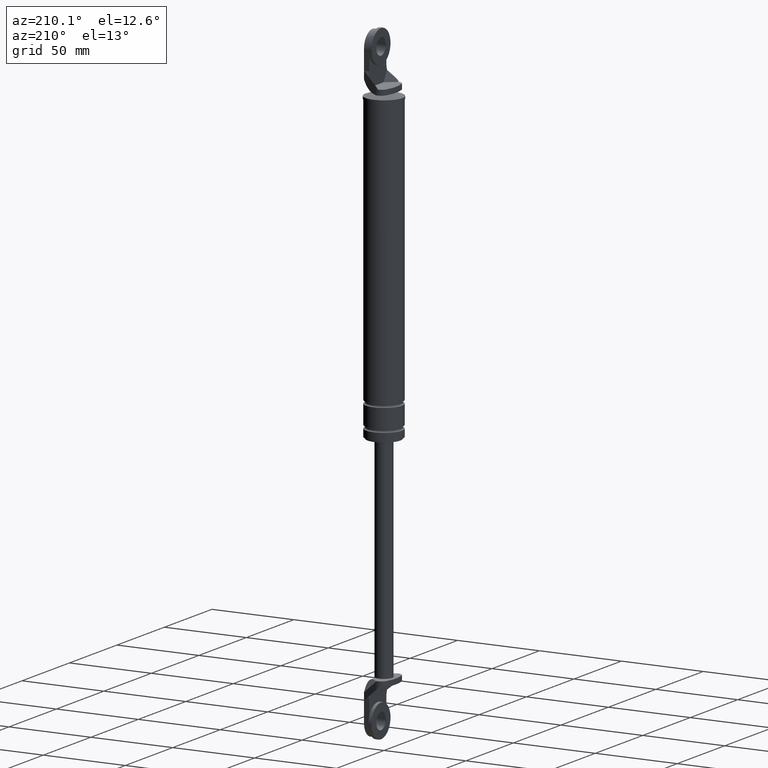
[diagram: clean part render]
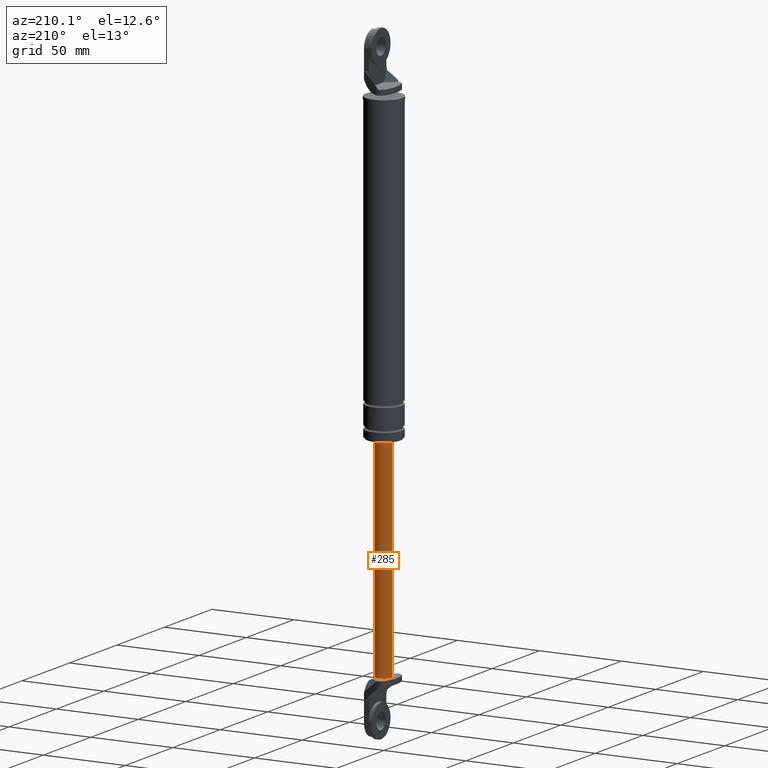
[diagram: same view with one face highlighted and labeled with its STEP entity id]
A machine part, auxiliary view. The second image highlights one B-rep face of the part: STEP entity #285.
In plain terms, the highlighted cylindrical surface (edge-blend (fillet) strip) has radius 5 mm, axis along (0, 0, 1).
Its self-contained STEP definition (entity closure, byte-faithful):
#285=ADVANCED_FACE('',(#1109),#1108,.T.);
#1108=CYLINDRICAL_SURFACE('',#1773,5.00000000000E+000);
#1109=FACE_OUTER_BOUND('',#1774,.T.);
#1770=CARTESIAN_POINT('',(0.00000000000E+000,3.58204186421E-014,0.00000000000E+000));
#1771=DIRECTION('',(-0.00000000000E+000,-0.00000000000E+000,1.00000000000E+000));
#1772=DIRECTION('',(1.00000000000E+000,0.00000000000E+000,0.00000000000E+000));
#1773=AXIS2_PLACEMENT_3D('',#1770,#1771,#1772);
#1774=EDGE_LOOP('',(#2170,#2171,#2172,#2173,#2174));
#2170=ORIENTED_EDGE('',*,*,#2374,.T.);
#2171=ORIENTED_EDGE('',*,*,#2378,.F.);
#2172=ORIENTED_EDGE('',*,*,#2362,.F.);
#2173=ORIENTED_EDGE('',*,*,#2366,.F.);
#2174=ORIENTED_EDGE('',*,*,#2379,.T.);
#2362=EDGE_CURVE('',#3244,#3594,#3595,.T.);
#2366=EDGE_CURVE('',#3613,#3244,#3620,.T.);
#2374=EDGE_CURVE('',#3665,#3664,#3672,.T.);
#2378=EDGE_CURVE('',#3594,#3664,#3696,.T.);
#2379=EDGE_CURVE('',#3613,#3665,#3702,.T.);
#3244=VERTEX_POINT('',#4240);
#3594=VERTEX_POINT('',#4448);
#3595=CIRCLE('',#4452,5.00000000000E+000);
#3613=VERTEX_POINT('',#4460);
#3620=CIRCLE('',#4468,5.00000000000E+000);
#3664=VERTEX_POINT('',#4492);
#3665=VERTEX_POINT('',#4493);
#3672=CIRCLE('',#4501,5.00000000000E+000);
#3696=(BOUNDED_CURVE() B_SPLINE_CURVE(1,(#4510,#4511),.UNSPECIFIED.,.F.,.F.) B_SPLINE_CURVE_WITH_KNOTS((2,2),(6.71140940856E-002,9.32885905909E-001),.UNSPECIFIED.) CURVE() GEOMETRIC_REPRESENTATION_ITEM() RATIONAL_B_SPLINE_CURVE((1.00000000000E+000,1.00000000000E+000)) REPRESENTATION_ITEM('') );
#3702=(BOUNDED_CURVE() B_SPLINE_CURVE(1,(#4512,#4513),.UNSPECIFIED.,.F.,.F.) B_SPLINE_CURVE_WITH_KNOTS((2,2),(6.71140939597E-002,9.32885906040E-001),.UNSPECIFIED.) CURVE() GEOMETRIC_REPRESENTATION_ITEM() RATIONAL_B_SPLINE_CURVE((7.50000000000E-001,7.50000000000E-001)) REPRESENTATION_ITEM('') );
#4240=CARTESIAN_POINT('',(2.00000000000E+000,4.58257569496E+000,-2.28000015000E+002));
#4448=CARTESIAN_POINT('',(5.00000000000E+000,-1.00793243772E-011,-2.28000015000E+002));
#4449=CARTESIAN_POINT('',(0.00000000000E+000,3.58204186421E-014,-2.28000015000E+002));
#4450=DIRECTION('',(0.00000000000E+000,0.00000000000E+000,-1.00000000000E+000));
#4451=DIRECTION('',(4.00000000000E-001,9.16515138991E-001,0.00000000000E+000));
#4452=AXIS2_PLACEMENT_3D('',#4449,#4450,#4451);
#4460=CARTESIAN_POINT('',(-5.00000000000E+000,8.97827334275E-007,-2.28000015000E+002));
#4465=CARTESIAN_POINT('',(0.00000000000E+000,3.58204186421E-014,-2.28000015000E+002));
#4466=DIRECTION('',(0.00000000000E+000,0.00000000000E+000,-1.00000000000E+000));
#4467=DIRECTION('',(1.00000000000E+000,-0.00000000000E+000,-0.00000000000E+000));
#4468=AXIS2_PLACEMENT_3D('',#4465,#4466,#4467);
#4492=CARTESIAN_POINT('',(5.00000000000E+000,3.58231962612E-014,-9.90000150000E+001));
#4493=CARTESIAN_POINT('',(-5.00000000000E+000,3.58204186421E-014,-9.90000150000E+001));
#4498=CARTESIAN_POINT('',(0.00000000000E+000,3.58204186421E-014,-9.90000150000E+001));
#4499=DIRECTION('',(-0.00000000000E+000,0.00000000000E+000,-1.00000000000E+000));
#4500=DIRECTION('',(-1.00000000000E+000,-1.22460635382E-016,0.00000000000E+000));
#4501=AXIS2_PLACEMENT_3D('',#4498,#4499,#4500);
#4510=CARTESIAN_POINT('',(5.00000000000E+000,3.58204186421E-014,-2.28000014981E+002));
#4511=CARTESIAN_POINT('',(5.00000000000E+000,3.58204186421E-014,-9.90000150196E+001));
#4512=CARTESIAN_POINT('',(-5.00000000000E+000,3.55271367880E-014,-2.28000015000E+002));
#4513=CARTESIAN_POINT('',(-5.00000000000E+000,3.55271367880E-014,-9.90000150000E+001));